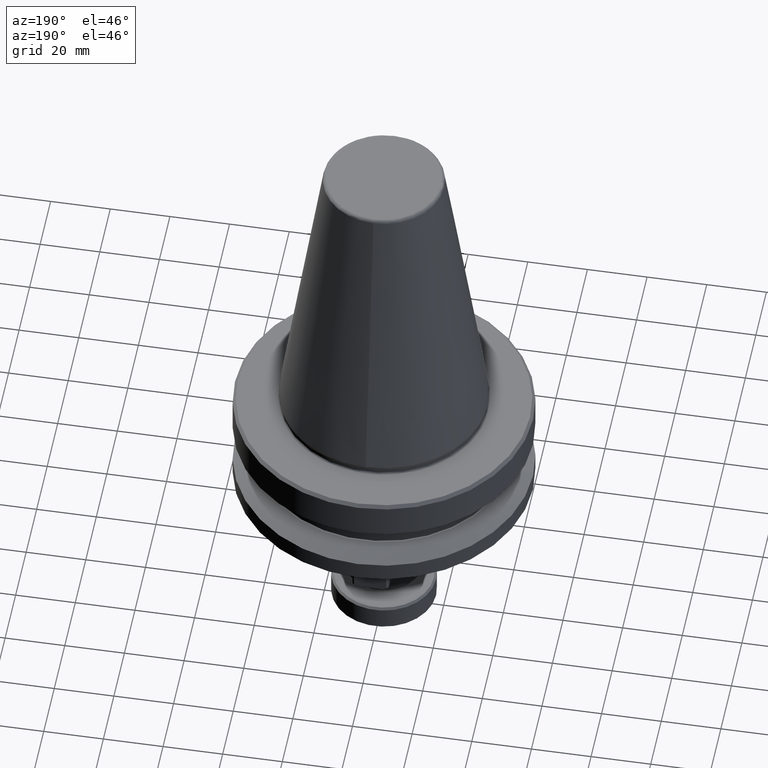
[diagram: clean part render]
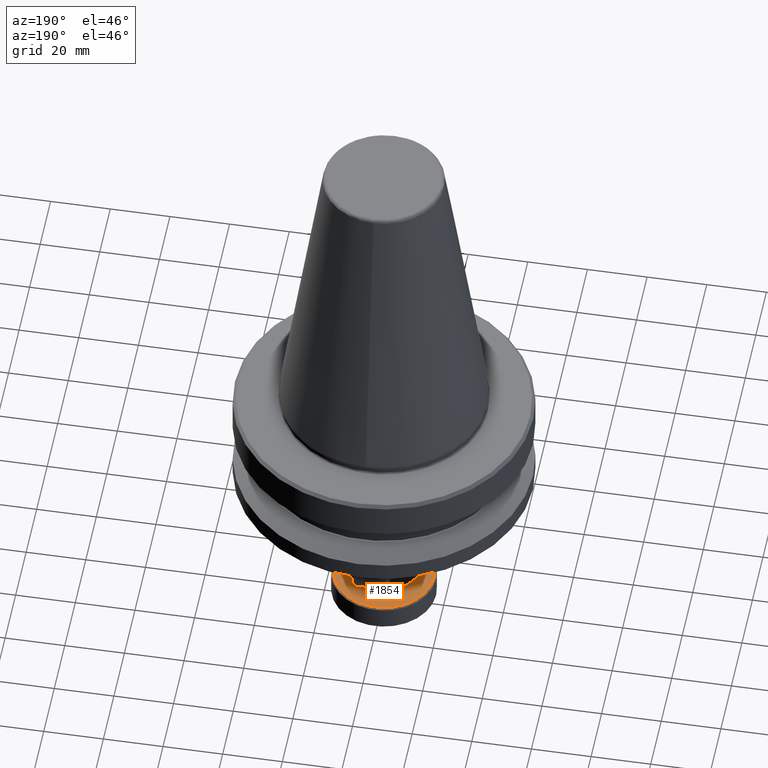
[diagram: same view with one face highlighted and labeled with its STEP entity id]
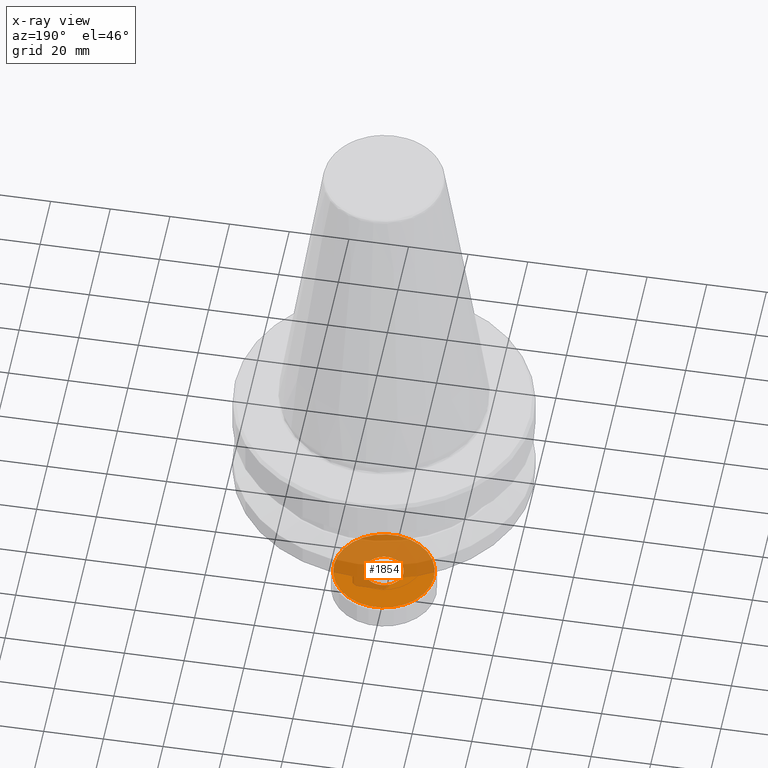
[diagram: x-ray of the same camera — body ghosted, the highlighted face saturated]
A machine part, auxiliary view. The second image highlights one B-rep face of the part: STEP entity #1854.
The next image is the same camera in x-ray: the body ghosted, the highlighted face saturated — about 61% of this face is hidden behind the body in this view.
In plain terms, the highlighted planar face has unit normal (0, 0, -1).
Its self-contained STEP definition (entity closure, byte-faithful):
#107 = ORIENTED_EDGE ( 'NONE', *, *, #1915, .F. ) ;
#136 = FACE_OUTER_BOUND ( 'NONE', #2160, .T. ) ;
#391 = CARTESIAN_POINT ( 'NONE',  ( -6.500000000000001800, 8.245569468628293400E-016, -84.99999999999998600 ) ) ;
#398 = CARTESIAN_POINT ( 'NONE',  ( -6.499999999999999100, -0.3973940948314927400, -84.99999999999997200 ) ) ;
#399 = CARTESIAN_POINT ( 'NONE',  ( -6.463828298235911000, -0.7916473750578105800, -84.99999999999997200 ) ) ;
#403 = CARTESIAN_POINT ( 'NONE',  ( -6.386963431987223500, -1.207204369780262600, -84.99999999999998600 ) ) ;
#406 = CARTESIAN_POINT ( 'NONE',  ( -6.381753807353924800, -1.234495898454220000, -84.99999999999997200 ) ) ;
#407 = CARTESIAN_POINT ( 'NONE',  ( -6.371561773059347000, -1.286103691652348300, -84.99999999999998600 ) ) ;
#412 = CARTESIAN_POINT ( 'NONE',  ( -6.355812774676711500, -1.363387116872388100, -84.99999999999998600 ) ) ;
#413 = CARTESIAN_POINT ( 'NONE',  ( -6.222983385900623600, -1.898086129132271700, -84.99999999999998600 ) ) ;
#417 = CARTESIAN_POINT ( 'NONE',  ( -1.390211390606341100, -6.353078022751714300, -84.99999999999998600 ) ) ;
#425 = CARTESIAN_POINT ( 'NONE',  ( -6.024212983795859300, -2.441658113807282100, -85.00000000000001400 ) ) ;
#430 = CARTESIAN_POINT ( 'NONE',  ( -3.509880286936183100, -5.471192872073827700, -84.99999999999998600 ) ) ;
#437 = CARTESIAN_POINT ( 'NONE',  ( -6.315838483198517000, -1.542817257012426600, -84.99999999999998600 ) ) ;
#438 = EDGE_CURVE ( 'NONE', #1814, #1705, #2482, .T. ) ;
#460 = CARTESIAN_POINT ( 'NONE',  ( 2.441658113807538400, -6.024212983795773200, -84.99999999999998600 ) ) ;
#461 = CARTESIAN_POINT ( 'NONE',  ( -5.893629218302475400, -2.745358832521776400, -85.00000000000000000 ) ) ;
#470 = CARTESIAN_POINT ( 'NONE',  ( -5.726351196048811200, -3.089321419699391700, -84.99999999999997200 ) ) ;
#475 = CARTESIAN_POINT ( 'NONE',  ( -5.959764458095005300, -2.595123948776805600, -84.99999999999998600 ) ) ;
#487 = CARTESIAN_POINT ( 'NONE',  ( -1.697032024486045500, -6.280790251559455600, -84.99999999999997200 ) ) ;
#495 = CARTESIAN_POINT ( 'NONE',  ( -6.121267849345563200, -2.196445605531748100, -85.00000000000000000 ) ) ;
#508 = CARTESIAN_POINT ( 'NONE',  ( -5.560748669423809100, -3.372857108890495500, -84.99999999999998600 ) ) ;
#510 = CARTESIAN_POINT ( 'NONE',  ( -5.183865074638097400, -3.923150811893409500, -85.00000000000000000 ) ) ;
#516 = CARTESIAN_POINT ( 'NONE',  ( -6.002620097695956500, -2.494340171528346400, -84.99999999999998600 ) ) ;
#522 = CARTESIAN_POINT ( 'NONE',  ( -3.932728277541382300, -5.194694429700475300, -84.99999999999998600 ) ) ;
#525 = CARTESIAN_POINT ( 'NONE',  ( 6.053740755358195000, -2.367067029734166300, -84.99999999999997200 ) ) ;
#526 = CARTESIAN_POINT ( 'NONE',  ( 6.062857760158094900, -2.343611803146563100, -84.99999999999997200 ) ) ;
#535 = CARTESIAN_POINT ( 'NONE',  ( 6.081632892683567000, -2.294471847546844000, -84.99999999999998600 ) ) ;
#537 = CARTESIAN_POINT ( 'NONE',  ( 6.109336920744945900, -2.220625767553158400, -84.99999999999998600 ) ) ;
#545 = CARTESIAN_POINT ( 'NONE',  ( 6.170768957800367700, -2.047365221409142200, -84.99999999999998600 ) ) ;
#551 = CARTESIAN_POINT ( 'NONE',  ( 6.280790251560049800, -1.697032024486114300, -85.00000000000000000 ) ) ;
#553 = CARTESIAN_POINT ( 'NONE',  ( 6.353078022752053600, -1.390211390606380900, -84.99999999999998600 ) ) ;
#561 = CARTESIAN_POINT ( 'NONE',  ( 6.396285753702194700, -1.156828396938013100, -84.99999999999998600 ) ) ;
#563 = CARTESIAN_POINT ( 'NONE',  ( 6.400386524438737900, -1.133901567401598000, -84.99999999999997200 ) ) ;
#567 = CARTESIAN_POINT ( 'NONE',  ( 6.408864267039700900, -1.085002321212872100, -84.99999999999998600 ) ) ;
#573 = ORIENTED_EDGE ( 'NONE', *, *, #438, .T. ) ;
#577 = CARTESIAN_POINT ( 'NONE',  ( 6.421156993811086600, -1.011612479018401300, -84.99999999999998600 ) ) ;
#583 = CARTESIAN_POINT ( 'NONE',  ( 6.446872813033997400, -0.8400827035182957300, -85.00000000000000000 ) ) ;
#586 = CARTESIAN_POINT ( 'NONE',  ( 6.486435611838468100, -0.4958759109993958200, -85.00000000000002800 ) ) ;
#594 = CARTESIAN_POINT ( 'NONE',  ( 6.500000000000001800, -0.1988748176654445400, -84.99999999999998600 ) ) ;
#602 = CARTESIAN_POINT ( 'NONE',  ( 6.500000000000001800, 0.0000000000000000000, -84.99999999999998600 ) ) ;
#616 = CARTESIAN_POINT ( 'NONE',  ( 3.923150811896432400, -5.183865074635322800, -85.00000000000000000 ) ) ;
#622 = CARTESIAN_POINT ( 'NONE',  ( 2.494340171529257700, -6.002620097695628800, -85.00000000000001400 ) ) ;
#632 = CARTESIAN_POINT ( 'NONE',  ( 3.372857108892437900, -5.560748669423110100, -85.00000000000000000 ) ) ;
#636 = CARTESIAN_POINT ( 'NONE',  ( 4.188395442434614100, -4.979564933819602900, -85.00000000000000000 ) ) ;
#659 = CARTESIAN_POINT ( 'NONE',  ( -2.343611803146556500, -6.062857760158011400, -85.00000000000001400 ) ) ;
#661 = CARTESIAN_POINT ( 'NONE',  ( -2.367067029734318600, -6.053740755358091100, -84.99999999999998600 ) ) ;
#671 = CARTESIAN_POINT ( 'NONE',  ( 3.742713084630378400, -5.315552471521503000, -85.00000000000001400 ) ) ;
#678 = CARTESIAN_POINT ( 'NONE',  ( 3.648866541058920300, -5.380331899670298200, -84.99999999999998600 ) ) ;
#686 = CARTESIAN_POINT ( 'NONE',  ( 4.437404191890100200, -4.754957656544536200, -85.00000000000001400 ) ) ;
#694 = CARTESIAN_POINT ( 'NONE',  ( 4.913773849357479400, -4.278666920048609200, -84.99999999999997200 ) ) ;
#697 = CARTESIAN_POINT ( 'NONE',  ( 5.194694429701501200, -3.932728277539992800, -84.99999999999997200 ) ) ;
#703 = CARTESIAN_POINT ( 'NONE',  ( 5.557526365164877200, -3.371552686105077100, -84.99999999999998600 ) ) ;
#735 = CARTESIAN_POINT ( 'NONE',  ( -2.047365221409092100, -6.170768957799925400, -84.99999999999998600 ) ) ;
#767 = CARTESIAN_POINT ( 'NONE',  ( -5.380331899669949200, -3.648866541059889300, -85.00000000000000000 ) ) ;
#776 = CARTESIAN_POINT ( 'NONE',  ( 1.234495898453971800, -6.381753807354006500, -84.99999999999997200 ) ) ;
#780 = CARTESIAN_POINT ( 'NONE',  ( 1.286103691651876000, -6.371561773059504200, -85.00000000000001400 ) ) ;
#783 = CARTESIAN_POINT ( 'NONE',  ( -2.895826739108605900, -5.826594636825611000, -84.99999999999998600 ) ) ;
#785 = CARTESIAN_POINT ( 'NONE',  ( 0.7914721564620428300, -6.463860708119474600, -85.00000000000001400 ) ) ;
#788 = CARTESIAN_POINT ( 'NONE',  ( -1.011679613043885000, -6.421144564846978900, -85.00000000000000000 ) ) ;
#791 = CARTESIAN_POINT ( 'NONE',  ( -0.8401977904191249000, -6.446851506238378900, -85.00000000000000000 ) ) ;
#793 = CARTESIAN_POINT ( 'NONE',  ( -0.4960293602005010900, -6.486407202777642500, -84.99999999999998600 ) ) ;
#797 = CARTESIAN_POINT ( 'NONE',  ( -1.156828396938019100, -6.396285753702236400, -84.99999999999998600 ) ) ;
#800 = CARTESIAN_POINT ( 'NONE',  ( -1.133922803674966200, -6.400382592827646100, -84.99999999999997200 ) ) ;
#830 = CARTESIAN_POINT ( 'NONE',  ( 5.499916928482658600, -3.464693074141854900, -84.99999999999997200 ) ) ;
#840 = CARTESIAN_POINT ( 'NONE',  ( -3.464693074141290500, -5.499916928483059100, -85.00000000000000000 ) ) ;
#854 = CARTESIAN_POINT ( 'NONE',  ( 2.745358832524329000, -5.893629218301555300, -85.00000000000000000 ) ) ;
#947 = CARTESIAN_POINT ( 'NONE',  ( 2.196445605530724000, -6.121267849345899800, -85.00000000000000000 ) ) ;
#974 = CARTESIAN_POINT ( 'NONE',  ( -5.315552471523269600, -3.742713084628455500, -85.00000000000001400 ) ) ;
#984 = CARTESIAN_POINT ( 'NONE',  ( 1.207215320942496900, -6.386961406369501900, -84.99999999999998600 ) ) ;
#988 = CARTESIAN_POINT ( 'NONE',  ( 1.542817257011082100, -6.315838483198965600, -85.00000000000000000 ) ) ;
#1004 = CARTESIAN_POINT ( 'NONE',  ( -0.1989625029232191500, -6.499983766250959000, -84.99999999999998600 ) ) ;
#1010 = CARTESIAN_POINT ( 'NONE',  ( -2.597004271495046100, -5.962689569287444900, -84.99999999999997200 ) ) ;
#1060 = CARTESIAN_POINT ( 'NONE',  ( -16.80000000000000100, 0.0000000000000000000, -84.99999999999997200 ) ) ;
#1070 = AXIS2_PLACEMENT_3D ( 'NONE', #2131, #2128, #2127 ) ;
#1088 = ORIENTED_EDGE ( 'NONE', *, *, #1877, .T. ) ;
#1128 = AXIS2_PLACEMENT_3D ( 'NONE', #2532, #2502, #2498 ) ;
#1249 = CARTESIAN_POINT ( 'NONE',  ( 5.642103851308989200, -3.230872038874699600, -84.99999999999998600 ) ) ;
#1255 = CARTESIAN_POINT ( 'NONE',  ( 5.826594636824128600, -2.895826739110715300, -84.99999999999998600 ) ) ;
#1292 = CARTESIAN_POINT ( 'NONE',  ( 3.089321419702789400, -5.726351196047588100, -84.99999999999998600 ) ) ;
#1337 = AXIS2_PLACEMENT_3D ( 'NONE', #2593, #2590, #2588 ) ;
#1376 = VERTEX_POINT ( 'NONE', #2232 ) ;
#1448 = CARTESIAN_POINT ( 'NONE',  ( -2.220625767553130500, -6.109336920744683900, -84.99999999999998600 ) ) ;
#1454 = CARTESIAN_POINT ( 'NONE',  ( -2.294471847546828000, -6.081632892683410700, -84.99999999999998600 ) ) ;
#1457 = CARTESIAN_POINT ( 'NONE',  ( -3.371552686104059200, -5.557526365165590400, -85.00000000000000000 ) ) ;
#1700 = B_SPLINE_CURVE_WITH_KNOTS ( 'NONE', 3,
 ( #2485, #2491, #2465, #2464, #2461, #2457, #2454, #2451, #2446, #2442, #2440, #2439, #2438, #2434, #2430, #2427, #2423, #2421, #2417, #2412, #2408, #2406, #2403, #2400, #2399, #2398, #2394, #2390, #2389, #2383, #2380, #2379, #2378, #2373, #2368, #2366, #2364, #2360, #2357, #2348, #2345, #2339, #2336, #2334, #2332, #2328, #2325, #2323, #2320, #2317, #2315, #2312, #2311, #2310, #2308, #2305, #2300, #2299, #2298, #2294, #2291, #2290, #2277, #2275, #2273, #2271, #2270, #2268, #2263, #2260, #2255, #2253, #2251, #2249, #2244, #2242, #2239, #2237, #2234, #2231, #2226, #2223, #2220, #2219, #2218, #2216 ),
 .UNSPECIFIED., .F., .F.,
 ( 4, 1, 1, 1, 2, 2, 1, 1, 1, 2, 2, 1, 1, 2, 2, 2, 1, 2, 2, 1, 1, 2, 2, 1, 1, 1, 2, 2, 2, 1, 1, 1, 2, 2, 1, 1, 1, 2, 2, 1, 1, 2, 2, 2, 1, 2, 2, 1, 1, 2, 2, 1, 1, 1, 2, 2, 4 ),
 ( 0.0000000000000000000, 0.03125000000000006200, 0.04687500000000008300, 0.05468750000000011100, 0.05859375000000011800, 0.06250000000000012500, 0.09375000000000015300, 0.1093750000000001700, 0.1171875000000001400, 0.1210937500000001000, 0.1250000000000000600, 0.1562499999999999200, 0.1718749999999998600, 0.1796874999999999200, 0.1874999999999999400, 0.2499999999999998300, 0.2812499999999997800, 0.2968749999999998300, 0.3124999999999998300, 0.3437500000000000000, 0.3593750000000000600, 0.3671875000000000600, 0.3750000000000000600, 0.4062500000000003300, 0.4218750000000003900, 0.4296875000000004400, 0.4335937500000005000, 0.4375000000000005000, 0.5000000000000005600, 0.5312500000000006700, 0.5468750000000006700, 0.5546875000000006700, 0.5585937500000006700, 0.5625000000000006700, 0.5937500000000007800, 0.6093750000000007800, 0.6171875000000007800, 0.6210937500000007800, 0.6250000000000007800, 0.6562500000000007800, 0.6718750000000006700, 0.6796875000000005600, 0.6875000000000004400, 0.7500000000000002200, 0.7812500000000002200, 0.7968750000000001100, 0.8125000000000001100, 0.8437500000000000000, 0.8593749999999998900, 0.8671875000000000000, 0.8750000000000000000, 0.9062500000000000000, 0.9218750000000001100, 0.9296875000000001100, 0.9335937500000001100, 0.9375000000000001100, 1.000000000000000000 ),
 .UNSPECIFIED. ) ;
#1705 = VERTEX_POINT ( 'NONE', #2603 ) ;
#1711 = EDGE_CURVE ( 'NONE', #2713, #1376, #1980, .T. ) ;
#1804 = CARTESIAN_POINT ( 'NONE',  ( -3.230872038873119600, -5.642103851310099400, -84.99999999999997200 ) ) ;
#1814 = VERTEX_POINT ( 'NONE', #2522 ) ;
#1816 = CARTESIAN_POINT ( 'NONE',  ( 1.363387116871603900, -6.355812774676967300, -84.99999999999998600 ) ) ;
#1825 = CARTESIAN_POINT ( 'NONE',  ( 0.3979250058464356400, -6.500032467498090000, -84.99999999999998600 ) ) ;
#1851 = CARTESIAN_POINT ( 'NONE',  ( -4.278666920044575100, -4.913773849361878600, -85.00000000000000000 ) ) ;
#1854 = ADVANCED_FACE ( 'NONE', ( #136, #2459 ), #2514, .F. ) ;
#1872 = CARTESIAN_POINT ( 'NONE',  ( -4.754957656546555000, -4.437404191887904600, -85.00000000000000000 ) ) ;
#1877 = EDGE_CURVE ( 'NONE', #1705, #1814, #1700, .T. ) ;
#1915 = EDGE_CURVE ( 'NONE', #1376, #2713, #2229, .T. ) ;
#1964 = CARTESIAN_POINT ( 'NONE',  ( -1.085042738636377900, -6.408856784296000700, -84.99999999999998600 ) ) ;
#1980 = CIRCLE ( 'NONE', #1337, 16.80000000000000100 ) ;
#2009 = EDGE_LOOP ( 'NONE', ( #573, #1088 ) ) ;
#2084 = CARTESIAN_POINT ( 'NONE',  ( -4.979564933823130700, -4.188395442430767400, -84.99999999999997200 ) ) ;
#2127 = DIRECTION ( 'NONE',  ( -1.000000000000000000, 0.0000000000000000000, 0.0000000000000000000 ) ) ;
#2128 = DIRECTION ( 'NONE',  ( 0.0000000000000000000, 0.0000000000000000000, -1.000000000000000000 ) ) ;
#2131 = CARTESIAN_POINT ( 'NONE',  ( 0.0000000000000000000, 0.0000000000000000000, -84.99999999999997200 ) ) ;
#2160 = EDGE_LOOP ( 'NONE', ( #2261, #107 ) ) ;
#2216 = CARTESIAN_POINT ( 'NONE',  ( 6.500000000000001800, 0.0000000000000000000, -84.99999999999998600 ) ) ;
#2218 = CARTESIAN_POINT ( 'NONE',  ( 6.500000000000001800, 0.3973940948359307400, -85.00000000000000000 ) ) ;
#2219 = CARTESIAN_POINT ( 'NONE',  ( 6.463828298235914500, 0.7916473750622397000, -84.99999999999998600 ) ) ;
#2220 = CARTESIAN_POINT ( 'NONE',  ( 6.386963431987222600, 1.207204369779985000, -85.00000000000000000 ) ) ;
#2223 = CARTESIAN_POINT ( 'NONE',  ( 6.381753807353701900, 1.234495898454866000, -85.00000000000000000 ) ) ;
#2226 = CARTESIAN_POINT ( 'NONE',  ( 6.371561773058918900, 1.286103691653578900, -85.00000000000000000 ) ) ;
#2229 = CIRCLE ( 'NONE', #1070, 16.80000000000000100 ) ;
#2231 = CARTESIAN_POINT ( 'NONE',  ( 6.355812774676000000, 1.363387116874434000, -85.00000000000000000 ) ) ;
#2232 = CARTESIAN_POINT ( 'NONE',  ( 16.80000000000000100, 2.100269260537710700E-015, -84.99999999999997200 ) ) ;
#2234 = CARTESIAN_POINT ( 'NONE',  ( 6.315838483197297600, 1.542817257015933300, -84.99999999999998600 ) ) ;
#2237 = CARTESIAN_POINT ( 'NONE',  ( 6.222983385898999100, 1.898086129136946900, -84.99999999999998600 ) ) ;
#2239 = CARTESIAN_POINT ( 'NONE',  ( 6.121267849344632400, 2.196445605534418800, -84.99999999999997200 ) ) ;
#2242 = CARTESIAN_POINT ( 'NONE',  ( 6.024212983796090300, 2.441658113806611600, -84.99999999999997200 ) ) ;
#2244 = CARTESIAN_POINT ( 'NONE',  ( 6.002620097695955600, 2.494340171528191000, -85.00000000000000000 ) ) ;
#2249 = CARTESIAN_POINT ( 'NONE',  ( 5.959764458095003500, 2.595123948776524100, -84.99999999999998600 ) ) ;
#2251 = CARTESIAN_POINT ( 'NONE',  ( 5.893629218302471900, 2.745358832521341600, -84.99999999999998600 ) ) ;
#2253 = CARTESIAN_POINT ( 'NONE',  ( 5.726351196048806700, 3.089321419698809000, -84.99999999999998600 ) ) ;
#2255 = CARTESIAN_POINT ( 'NONE',  ( 5.560748669423808200, 3.372857108890164700, -85.00000000000004300 ) ) ;
#2260 = CARTESIAN_POINT ( 'NONE',  ( 5.380331899669951800, 3.648866541060059800, -84.99999999999998600 ) ) ;
#2261 = ORIENTED_EDGE ( 'NONE', *, *, #1711, .F. ) ;
#2263 = CARTESIAN_POINT ( 'NONE',  ( 5.315552471523545800, 3.742713084628339600, -85.00000000000001400 ) ) ;
#2268 = CARTESIAN_POINT ( 'NONE',  ( 5.183865074638529100, 3.923150811893227500, -84.99999999999998600 ) ) ;
#2270 = CARTESIAN_POINT ( 'NONE',  ( 4.979564933823679600, 4.188395442430535600, -84.99999999999997200 ) ) ;
#2271 = CARTESIAN_POINT ( 'NONE',  ( 4.754957656546865000, 4.437404191887769600, -84.99999999999998600 ) ) ;
#2273 = CARTESIAN_POINT ( 'NONE',  ( 4.278666920043943600, 4.913773849362145000, -85.00000000000000000 ) ) ;
#2275 = CARTESIAN_POINT ( 'NONE',  ( 3.932728277543033400, 5.194694429698461800, -85.00000000000001400 ) ) ;
#2277 = CARTESIAN_POINT ( 'NONE',  ( 3.509880286935978000, 5.471192872074082600, -85.00000000000000000 ) ) ;
#2290 = CARTESIAN_POINT ( 'NONE',  ( 3.464693074143221400, 5.499916928482008400, -84.99999999999998600 ) ) ;
#2291 = CARTESIAN_POINT ( 'NONE',  ( 3.371552686107534700, 5.557526365163704800, -84.99999999999998600 ) ) ;
#2294 = CARTESIAN_POINT ( 'NONE',  ( 3.230872038878524600, 5.642103851307168400, -84.99999999999997200 ) ) ;
#2298 = CARTESIAN_POINT ( 'NONE',  ( 2.895826739115810800, 5.826594636821701200, -84.99999999999997200 ) ) ;
#2299 = CARTESIAN_POINT ( 'NONE',  ( 2.597004271499161900, 5.962689569285211100, -84.99999999999998600 ) ) ;
#2300 = CARTESIAN_POINT ( 'NONE',  ( 2.367067029733800800, 6.053740755358373500, -84.99999999999998600 ) ) ;
#2305 = CARTESIAN_POINT ( 'NONE',  ( 2.343611803146799800, 6.062857760158060200, -85.00000000000000000 ) ) ;
#2308 = CARTESIAN_POINT ( 'NONE',  ( 2.294471847547294300, 6.081632892683492400, -84.99999999999998600 ) ) ;
#2310 = CARTESIAN_POINT ( 'NONE',  ( 2.220625767553907200, 6.109336920744826000, -85.00000000000000000 ) ) ;
#2311 = CARTESIAN_POINT ( 'NONE',  ( 2.047365221410425200, 6.170768957800160800, -85.00000000000000000 ) ) ;
#2312 = CARTESIAN_POINT ( 'NONE',  ( 1.697032024487823900, 6.280790251559766400, -84.99999999999997200 ) ) ;
#2315 = CARTESIAN_POINT ( 'NONE',  ( 1.390211390607356500, 6.353078022751890200, -84.99999999999998600 ) ) ;
#2317 = CARTESIAN_POINT ( 'NONE',  ( 1.156828396937889400, 6.396285753702216000, -84.99999999999998600 ) ) ;
#2320 = CARTESIAN_POINT ( 'NONE',  ( 1.133922803674511500, 6.400382592827645200, -85.00000000000000000 ) ) ;
#2323 = CARTESIAN_POINT ( 'NONE',  ( 1.085042738635515000, 6.408856784295998900, -84.99999999999998600 ) ) ;
#2325 = CARTESIAN_POINT ( 'NONE',  ( 1.011679613042453000, 6.421144564846978000, -85.00000000000000000 ) ) ;
#2328 = CARTESIAN_POINT ( 'NONE',  ( 0.8401977904166725300, 6.446851506238378000, -85.00000000000000000 ) ) ;
#2332 = CARTESIAN_POINT ( 'NONE',  ( 0.4960293601972323200, 6.486407202777644300, -84.99999999999998600 ) ) ;
#2334 = CARTESIAN_POINT ( 'NONE',  ( 0.1989625029213524500, 6.499983766250959000, -84.99999999999997200 ) ) ;
#2336 = CARTESIAN_POINT ( 'NONE',  ( -0.3979250058427015200, 6.500032467498088300, -84.99999999999998600 ) ) ;
#2339 = CARTESIAN_POINT ( 'NONE',  ( -0.7914721564654494400, 6.463860708119471000, -84.99999999999998600 ) ) ;
#2345 = CARTESIAN_POINT ( 'NONE',  ( -1.207215320942284200, 6.386961406369501900, -84.99999999999998600 ) ) ;
#2348 = CARTESIAN_POINT ( 'NONE',  ( -1.234495898454698300, 6.381753807353791600, -84.99999999999997200 ) ) ;
#2357 = CARTESIAN_POINT ( 'NONE',  ( -1.286103691653258900, 6.371561773059090300, -84.99999999999997200 ) ) ;
#2360 = CARTESIAN_POINT ( 'NONE',  ( -1.363387116873903600, 6.355812774676290500, -85.00000000000000000 ) ) ;
#2364 = CARTESIAN_POINT ( 'NONE',  ( -1.542817257015022000, 6.315838483197793200, -84.99999999999998600 ) ) ;
#2366 = CARTESIAN_POINT ( 'NONE',  ( -1.898086129135734000, 6.222983385899661700, -85.00000000000000000 ) ) ;
#2367 = CARTESIAN_POINT ( 'NONE',  ( 5.471192872073700600, -3.509880286936354600, -84.99999999999997200 ) ) ;
#2368 = CARTESIAN_POINT ( 'NONE',  ( -2.196445605533725600, 6.121267849345011700, -84.99999999999998600 ) ) ;
#2373 = CARTESIAN_POINT ( 'NONE',  ( -2.441658113806785700, 6.024212983795997900, -85.00000000000001400 ) ) ;
#2378 = CARTESIAN_POINT ( 'NONE',  ( -2.494340171528361100, 6.002620097695836600, -84.99999999999997200 ) ) ;
#2379 = CARTESIAN_POINT ( 'NONE',  ( -2.595123948776832300, 5.959764458094792200, -85.00000000000001400 ) ) ;
#2380 = CARTESIAN_POINT ( 'NONE',  ( -2.745358832521821200, 5.893629218302137900, -84.99999999999998600 ) ) ;
#2383 = CARTESIAN_POINT ( 'NONE',  ( -3.089321419699447200, 5.726351196048364400, -84.99999999999998600 ) ) ;
#2389 = CARTESIAN_POINT ( 'NONE',  ( -3.372857108890526600, 5.560748669423557700, -85.00000000000001400 ) ) ;
#2390 = CARTESIAN_POINT ( 'NONE',  ( -3.648866541059874200, 5.380331899670076200, -84.99999999999998600 ) ) ;
#2394 = CARTESIAN_POINT ( 'NONE',  ( -3.742713084628765500, 5.315552471523277600, -85.00000000000002800 ) ) ;
#2398 = CARTESIAN_POINT ( 'NONE',  ( -3.923150811893896300, 5.183865074638105400, -84.99999999999997200 ) ) ;
#2399 = CARTESIAN_POINT ( 'NONE',  ( -4.188395442431388300, 4.979564933823147600, -84.99999999999998600 ) ) ;
#2400 = CARTESIAN_POINT ( 'NONE',  ( -4.437404191888258100, 4.754957656546562100, -84.99999999999998600 ) ) ;
#2403 = CARTESIAN_POINT ( 'NONE',  ( -4.913773849361167100, 4.278666920044560000, -84.99999999999998600 ) ) ;
#2406 = CARTESIAN_POINT ( 'NONE',  ( -5.194694429701701900, 3.932728277539431400, -84.99999999999997200 ) ) ;
#2408 = CARTESIAN_POINT ( 'NONE',  ( -5.471192872073675800, 3.509880286936426100, -84.99999999999997200 ) ) ;
#2412 = CARTESIAN_POINT ( 'NONE',  ( -5.499916928482127400, 3.464693074142728000, -84.99999999999998600 ) ) ;
#2417 = CARTESIAN_POINT ( 'NONE',  ( -5.557526365163919700, 3.371552686106649200, -85.00000000000001400 ) ) ;
#2421 = CARTESIAN_POINT ( 'NONE',  ( -5.642103851307498800, 3.230872038877148400, -85.00000000000000000 ) ) ;
#2423 = CARTESIAN_POINT ( 'NONE',  ( -5.826594636822140000, 2.895826739113977100, -85.00000000000000000 ) ) ;
#2427 = CARTESIAN_POINT ( 'NONE',  ( -5.962689569285462500, 2.597004271498113400, -84.99999999999997200 ) ) ;
#2430 = CARTESIAN_POINT ( 'NONE',  ( -6.053740755358341600, 2.367067029733931800, -85.00000000000000000 ) ) ;
#2433 = CARTESIAN_POINT ( 'NONE',  ( 5.962689569286596700, -2.597004271496251800, -84.99999999999998600 ) ) ;
#2434 = CARTESIAN_POINT ( 'NONE',  ( -6.062857760158041600, 2.343611803146935700, -84.99999999999997200 ) ) ;
#2438 = CARTESIAN_POINT ( 'NONE',  ( -6.081632892683463100, 2.294471847547555400, -85.00000000000000000 ) ) ;
#2439 = CARTESIAN_POINT ( 'NONE',  ( -6.109336920744770100, 2.220625767554339700, -85.00000000000000000 ) ) ;
#2440 = CARTESIAN_POINT ( 'NONE',  ( -6.170768957800070200, 2.047365221411168200, -84.99999999999997200 ) ) ;
#2442 = CARTESIAN_POINT ( 'NONE',  ( -6.280790251559650100, 1.697032024488814800, -84.99999999999998600 ) ) ;
#2446 = CARTESIAN_POINT ( 'NONE',  ( -6.353078022751824400, 1.390211390607924300, -84.99999999999997200 ) ) ;
#2451 = CARTESIAN_POINT ( 'NONE',  ( -6.396285753702223100, 1.156828396937819700, -85.00000000000000000 ) ) ;
#2454 = CARTESIAN_POINT ( 'NONE',  ( -6.400386524438741500, 1.133901567401526700, -84.99999999999998600 ) ) ;
#2457 = CARTESIAN_POINT ( 'NONE',  ( -6.408864267039700000, 1.085002321212736700, -85.00000000000000000 ) ) ;
#2459 = FACE_BOUND ( 'NONE', #2009, .T. ) ;
#2461 = CARTESIAN_POINT ( 'NONE',  ( -6.421156993811087500, 1.011612479018176900, -84.99999999999998600 ) ) ;
#2464 = CARTESIAN_POINT ( 'NONE',  ( -6.446872813033995600, 0.8400827035179114800, -85.00000000000000000 ) ) ;
#2465 = CARTESIAN_POINT ( 'NONE',  ( -6.486435611838467200, 0.4958759109988851700, -84.99999999999998600 ) ) ;
#2482 = B_SPLINE_CURVE_WITH_KNOTS ( 'NONE', 3,
 ( #602, #594, #586, #583, #577, #567, #563, #561, #553, #551, #545, #537, #535, #526, #525, #2433, #1255, #1249, #703, #830, #2367, #697, #694, #686, #636, #616, #671, #678, #632, #1292, #854, #2592, #622, #460, #947, #2504, #988, #1816, #780, #776, #984, #785, #1825, #1004, #793, #791, #788, #1964, #800, #797, #417, #487, #735, #1448, #1454, #659, #661, #1010, #783, #1804, #1457, #840, #430, #522, #1851, #1872, #2084, #510, #974, #767, #508, #470, #461, #475, #516, #425, #495, #413, #437, #412, #407, #406, #403, #399, #398, #391 ),
 .UNSPECIFIED., .F., .F.,
 ( 4, 1, 1, 1, 2, 2, 1, 1, 1, 2, 2, 1, 1, 2, 2, 2, 1, 2, 2, 1, 1, 2, 2, 1, 1, 1, 2, 2, 2, 1, 1, 1, 2, 2, 1, 1, 1, 2, 2, 1, 1, 2, 2, 2, 1, 2, 2, 1, 1, 2, 2, 1, 1, 1, 2, 2, 4 ),
 ( 0.0000000000000000000, 0.03124999999999891800, 0.04687499999999836900, 0.05468749999999810600, 0.05859374999999798800, 0.06249999999999787700, 0.09374999999999704400, 0.1093749999999966400, 0.1171874999999964600, 0.1210937499999964100, 0.1249999999999963400, 0.1562499999999959200, 0.1718749999999956400, 0.1796874999999955300, 0.1874999999999953900, 0.2499999999999943900, 0.2812499999999938900, 0.2968749999999937300, 0.3124999999999935600, 0.3437499999999931700, 0.3593749999999930600, 0.3671874999999929500, 0.3749999999999928400, 0.4062499999999924500, 0.4218749999999923400, 0.4296874999999922800, 0.4335937499999922300, 0.4374999999999922300, 0.4999999999999926700, 0.5312499999999928900, 0.5468749999999930100, 0.5546874999999931200, 0.5585937499999931200, 0.5624999999999930100, 0.5937499999999933400, 0.6093749999999934500, 0.6171874999999934500, 0.6210937499999934500, 0.6249999999999934500, 0.6562499999999938900, 0.6718749999999941200, 0.6796874999999943400, 0.6874999999999944500, 0.7499999999999956700, 0.7812499999999962300, 0.7968749999999965600, 0.8124999999999968900, 0.8437499999999976700, 0.8593749999999980000, 0.8671874999999981100, 0.8749999999999983300, 0.9062499999999988900, 0.9218749999999991100, 0.9296874999999993300, 0.9335937499999994400, 0.9374999999999994400, 1.000000000000000000 ),
 .UNSPECIFIED. ) ;
#2485 = CARTESIAN_POINT ( 'NONE',  ( -6.500000000000001800, 8.245569468628293400E-016, -84.99999999999998600 ) ) ;
#2491 = CARTESIAN_POINT ( 'NONE',  ( -6.500000000000000900, 0.1988748176651536600, -85.00000000000000000 ) ) ;
#2498 = DIRECTION ( 'NONE',  ( -1.000000000000000000, 0.0000000000000000000, -0.0000000000000000000 ) ) ;
#2502 = DIRECTION ( 'NONE',  ( 0.0000000000000000000, 0.0000000000000000000, -1.000000000000000000 ) ) ;
#2504 = CARTESIAN_POINT ( 'NONE',  ( 1.898086129130481100, -6.222983385901219600, -85.00000000000000000 ) ) ;
#2514 = PLANE ( 'NONE',  #1128 ) ;
#2522 = CARTESIAN_POINT ( 'NONE',  ( 6.500000000000001800, 0.0000000000000000000, -84.99999999999998600 ) ) ;
#2532 = CARTESIAN_POINT ( 'NONE',  ( 0.0000000000000000000, 6.500000000000001800, -84.99999999999998600 ) ) ;
#2588 = DIRECTION ( 'NONE',  ( -1.000000000000000000, 0.0000000000000000000, 0.0000000000000000000 ) ) ;
#2590 = DIRECTION ( 'NONE',  ( 0.0000000000000000000, 0.0000000000000000000, -1.000000000000000000 ) ) ;
#2592 = CARTESIAN_POINT ( 'NONE',  ( 2.595123948778444300, -5.959764458094417300, -84.99999999999998600 ) ) ;
#2593 = CARTESIAN_POINT ( 'NONE',  ( 0.0000000000000000000, 0.0000000000000000000, -84.99999999999997200 ) ) ;
#2603 = CARTESIAN_POINT ( 'NONE',  ( -6.500000000000001800, 8.245569468628293400E-016, -84.99999999999998600 ) ) ;
#2713 = VERTEX_POINT ( 'NONE', #1060 ) ;